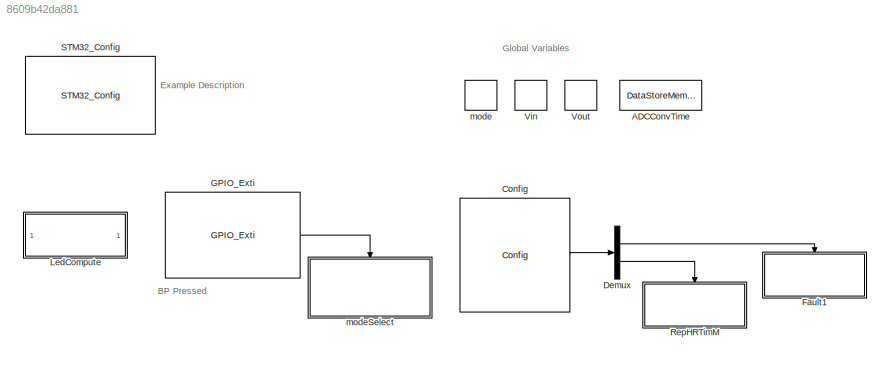
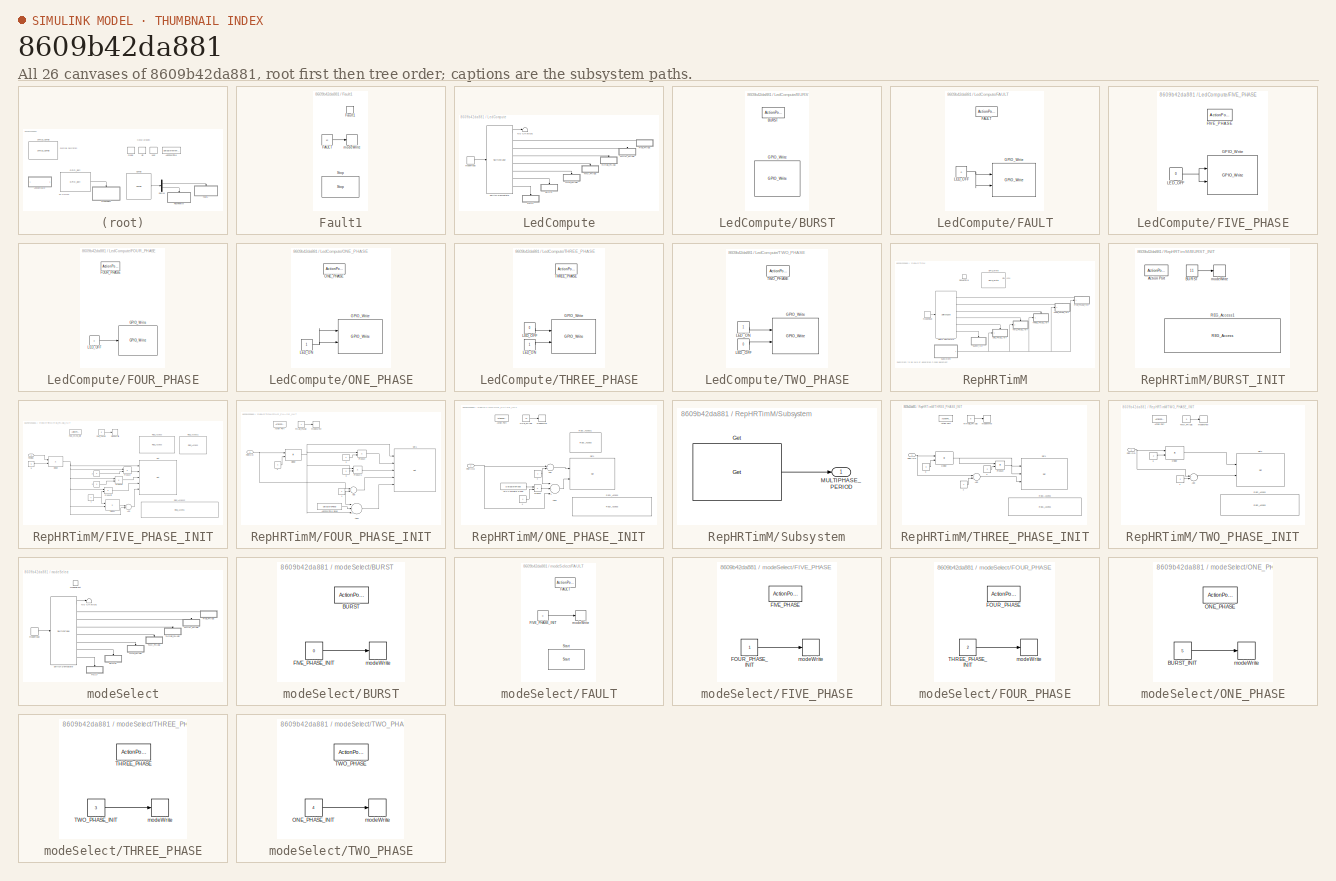
[diagram: thumbnail index - all 26 canvases of the model, root first then tree order]
MODEL slx_8609b42da881
KIND model
CONFIG AbsTol = auto
CONFIG EnableMultiTasking = on
CONFIG FixedStep = 0.05
CONFIG MaxStep = auto
CONFIG MinStep = auto
CONFIG RelTol = 1e-3
CONFIG SampleTimeConstraint = Unconstrained
CONFIG Solver = FixedStepDiscrete
CONFIG SolverName = FixedStepDiscrete
CONFIG StartTime = 0.0
CONFIG StopTime = 10.0
BLOCK [DataStoreMemory] ADCConvTime
  DataStoreName = ADCConvTime
  InitialValue = 1152
  OutDataTypeStr = uint32
  ReadBeforeWriteMsg = warning
  ShowAdditionalParam = off
  WriteAfterReadMsg = warning
  WriteAfterWriteMsg = warning
BLOCK [Reference] Config  REF=HRTIMERS_Lib/Config
  Ports = [0, 1]
  SourceBlock = HRTIMERS_Lib/Config
  SourceProductName = Target Support Package - STM32 Adapter
  SourceType = HRTimer_Config
BLOCK [Demux] Demux
  DisplayOption = bar
  Outputs = 2
  Ports = [1, 2]
BLOCK [SubSystem] Fault1
  Ports = [0, 0, 0, 1]
  RequestExecContextInheritance = off
  TreatAsAtomicUnit = on
BLOCK [Constant] Fault1/FAULT
  OutDataTypeStr = uint8
  Value = 12
BLOCK [TriggerPort] Fault1/Fault1
  Ports = []
  StatesWhenEnabling = held
  TriggerType = function-call
  VariantControl = Variant
BLOCK [Reference] Fault1/Stop  REF=HRTIMERS_Lib/Stop
  Ports = []
  SourceBlock = HRTIMERS_Lib/Stop
  SourceProductName = Target Support Package - STM32 Adapter
  SourceType = HRTimer_Stop
BLOCK [DataStoreWrite] Fault1/modeWrite
  DataStoreName = mode
  Ports = [1]
BLOCK [Reference] GPIO_Exti  REF=GPIO_Lib/GPIO_Exti
  Ports = [0, 1]
  Priority = 0
  SourceBlock = GPIO_Lib/GPIO_Exti
  SourceProductName = Target Support Package - STM32 Adapter
  SourceType = GPIO_Exti
BLOCK [SubSystem] LedCompute
  Ports = []
  RequestExecContextInheritance = off
BLOCK [SubSystem] LedCompute/BURST
  Ports = [0, 0, 0, 0, 0, 0, 0, 1]
  RequestExecContextInheritance = off
  TreatAsAtomicUnit = on
BLOCK [ActionPort] LedCompute/BURST/BURST
  ActionType = case
BLOCK [Reference] LedCompute/BURST/GPIO_Write  REF=GPIO_Lib/GPIO_Write
  Ports = []
  SourceBlock = GPIO_Lib/GPIO_Write
  SourceProductName = Target Support Package - STM32 Adapter
  SourceType = GPIO_Write
BLOCK [SubSystem] LedCompute/FAULT
  Ports = [0, 0, 0, 0, 0, 0, 0, 1]
  RequestExecContextInheritance = off
  TreatAsAtomicUnit = on
BLOCK [ActionPort] LedCompute/FAULT/FAULT
  ActionType = case
BLOCK [Reference] LedCompute/FAULT/GPIO_Write  REF=GPIO_Lib/GPIO_Write
  Ports = [2]
  SourceBlock = GPIO_Lib/GPIO_Write
  SourceProductName = Target Support Package - STM32 Adapter
  SourceType = GPIO_Write
BLOCK [Constant] LedCompute/FAULT/LED_OFF
  Value = 0
BLOCK [SubSystem] LedCompute/FIVE_PHASE
  Ports = [0, 0, 0, 0, 0, 0, 0, 1]
  RequestExecContextInheritance = off
  TreatAsAtomicUnit = on
BLOCK [ActionPort] LedCompute/FIVE_PHASE/FIVE_PHASE
  ActionType = case
BLOCK [Reference] LedCompute/FIVE_PHASE/GPIO_Write  REF=GPIO_Lib/GPIO_Write
  Ports = [2]
  SourceBlock = GPIO_Lib/GPIO_Write
  SourceProductName = Target Support Package - STM32 Adapter
  SourceType = GPIO_Write
BLOCK [Constant] LedCompute/FIVE_PHASE/LED_OFF
  Value = 0
BLOCK [SubSystem] LedCompute/FOUR_PHASE
  Ports = [0, 0, 0, 0, 0, 0, 0, 1]
  RequestExecContextInheritance = off
  TreatAsAtomicUnit = on
BLOCK [ActionPort] LedCompute/FOUR_PHASE/FOUR_PHASE
  ActionType = case
BLOCK [Reference] LedCompute/FOUR_PHASE/GPIO_Write  REF=GPIO_Lib/GPIO_Write
  Ports = [1]
  SourceBlock = GPIO_Lib/GPIO_Write
  SourceProductName = Target Support Package - STM32 Adapter
  SourceType = GPIO_Write
BLOCK [Constant] LedCompute/FOUR_PHASE/LED_OFF
  Value = 0
BLOCK [Terminator] LedCompute/NO CHANGE
BLOCK [SubSystem] LedCompute/ONE_PHASE
  Ports = [0, 0, 0, 0, 0, 0, 0, 1]
  RequestExecContextInheritance = off
  TreatAsAtomicUnit = on
BLOCK [Reference] LedCompute/ONE_PHASE/GPIO_Write  REF=GPIO_Lib/GPIO_Write
  Ports = [2]
  SourceBlock = GPIO_Lib/GPIO_Write
  SourceProductName = Target Support Package - STM32 Adapter
  SourceType = GPIO_Write
BLOCK [Constant] LedCompute/ONE_PHASE/LED_ON
BLOCK [ActionPort] LedCompute/ONE_PHASE/ONE_PHASE
  ActionType = case
BLOCK [SwitchCase] LedCompute/Switch DemoState
  CaseConditions = {[0,5],6,7,8,9,10,11,12}
  Ports = [1, 8]
  ShowDefaultCase = off
BLOCK [SubSystem] LedCompute/THREE_PHASE
  Ports = [0, 0, 0, 0, 0, 0, 0, 1]
  RequestExecContextInheritance = off
  TreatAsAtomicUnit = on
BLOCK [Reference] LedCompute/THREE_PHASE/GPIO_Write  REF=GPIO_Lib/GPIO_Write
  Ports = [2]
  SourceBlock = GPIO_Lib/GPIO_Write
  SourceProductName = Target Support Package - STM32 Adapter
  SourceType = GPIO_Write
BLOCK [Constant] LedCompute/THREE_PHASE/LED_OFF
  Value = 0
BLOCK [Constant] LedCompute/THREE_PHASE/LED_ON
BLOCK [ActionPort] LedCompute/THREE_PHASE/THREE_PHASE
  ActionType = case
BLOCK [SubSystem] LedCompute/TWO_PHASE
  Ports = [0, 0, 0, 0, 0, 0, 0, 1]
  RequestExecContextInheritance = off
  TreatAsAtomicUnit = on
BLOCK [Reference] LedCompute/TWO_PHASE/GPIO_Write  REF=GPIO_Lib/GPIO_Write
  Ports = [2]
  SourceBlock = GPIO_Lib/GPIO_Write
  SourceProductName = Target Support Package - STM32 Adapter
  SourceType = GPIO_Write
BLOCK [Constant] LedCompute/TWO_PHASE/LED_OFF
  Value = 0
BLOCK [Constant] LedCompute/TWO_PHASE/LED_ON
BLOCK [ActionPort] LedCompute/TWO_PHASE/TWO_PHASE
  ActionType = case
BLOCK [DataStoreRead] LedCompute/modeRead
  DataStoreName = mode
  DialogController = Simulink.DDGSource
  Ports = [0, 1]
BLOCK [SubSystem] RepHRTimM
  Ports = [0, 0, 0, 1]
  RequestExecContextInheritance = off
  TreatAsAtomicUnit = on
BLOCK [SubSystem] RepHRTimM/BURST_INIT
  Ports = [0, 0, 0, 0, 0, 0, 0, 1]
  RequestExecContextInheritance = off
  TreatAsAtomicUnit = on
BLOCK [ActionPort] RepHRTimM/BURST_INIT/Action Port
  ActionType = case
BLOCK [Constant] RepHRTimM/BURST_INIT/BURST
  OutDataTypeStr = uint8
  Value = 11
BLOCK [Reference] RepHRTimM/BURST_INIT/REG_Access1  REF=REG_Lib/REG_Access
  Ports = []
  SourceBlock = REG_Lib/REG_Access
  SourceProductName = Target Support Package - STM32 Adapter
  SourceType = REG_Access
BLOCK [DataStoreWrite] RepHRTimM/BURST_INIT/modeWrite
  DataStoreName = mode
  Ports = [1]
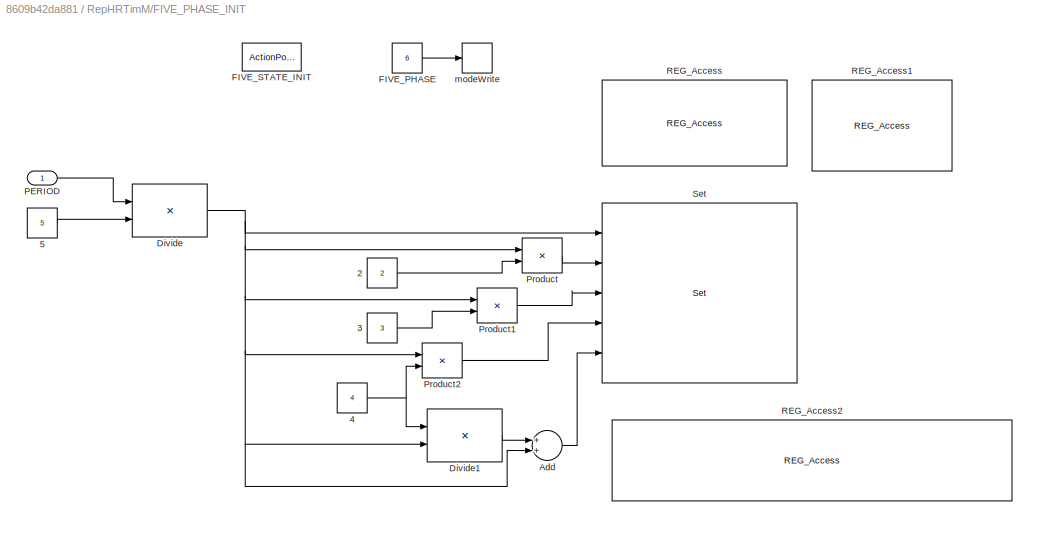
BLOCK [SubSystem] RepHRTimM/FIVE_PHASE_INIT
  Ports = [1, 0, 0, 0, 0, 0, 0, 1]
  RequestExecContextInheritance = off
  TreatAsAtomicUnit = on
BLOCK [Constant] RepHRTimM/FIVE_PHASE_INIT/2
  OutDataTypeStr = uint32
  Value = 2
BLOCK [Constant] RepHRTimM/FIVE_PHASE_INIT/3
  OutDataTypeStr = uint32
  Value = 3
BLOCK [Constant] RepHRTimM/FIVE_PHASE_INIT/4
  OutDataTypeStr = uint32
  Value = 4
BLOCK [Constant] RepHRTimM/FIVE_PHASE_INIT/5
  OutDataTypeStr = uint32
  Value = 5
BLOCK [Sum] RepHRTimM/FIVE_PHASE_INIT/Add
  OutDataTypeStr = uint32
  Ports = [2, 1]
  SaturateOnIntegerOverflow = off
BLOCK [Product] RepHRTimM/FIVE_PHASE_INIT/Divide
  Inputs = */
  OutDataTypeStr = uint32
  Ports = [2, 1]
  RndMeth = Floor
  SaturateOnIntegerOverflow = off
BLOCK [Product] RepHRTimM/FIVE_PHASE_INIT/Divide1
  Inputs = /*
  OutDataTypeStr = uint32
  Ports = [2, 1]
  RndMeth = Floor
  SaturateOnIntegerOverflow = off
BLOCK [Constant] RepHRTimM/FIVE_PHASE_INIT/FIVE_PHASE
  OutDataTypeStr = uint8
  Value = 6
BLOCK [ActionPort] RepHRTimM/FIVE_PHASE_INIT/FIVE_STATE_INIT
  ActionType = case
BLOCK [Inport] RepHRTimM/FIVE_PHASE_INIT/PERIOD
  IconDisplay = Port number
BLOCK [Product] RepHRTimM/FIVE_PHASE_INIT/Product
  OutDataTypeStr = uint32
  Ports = [2, 1]
  RndMeth = Floor
  SaturateOnIntegerOverflow = off
BLOCK [Product] RepHRTimM/FIVE_PHASE_INIT/Product1
  OutDataTypeStr = uint32
  Ports = [2, 1]
  RndMeth = Floor
  SaturateOnIntegerOverflow = off
BLOCK [Product] RepHRTimM/FIVE_PHASE_INIT/Product2
  OutDataTypeStr = uint32
  Ports = [2, 1]
  RndMeth = Floor
  SaturateOnIntegerOverflow = off
BLOCK [Reference] RepHRTimM/FIVE_PHASE_INIT/REG_Access  REF=REG_Lib/REG_Access
  Ports = []
  SourceBlock = REG_Lib/REG_Access
  SourceProductName = Target Support Package - STM32 Adapter
  SourceType = REG_Access
BLOCK [Reference] RepHRTimM/FIVE_PHASE_INIT/REG_Access1  REF=REG_Lib/REG_Access
  Ports = []
  SourceBlock = REG_Lib/REG_Access
  SourceProductName = Target Support Package - STM32 Adapter
  SourceType = REG_Access
BLOCK [Reference] RepHRTimM/FIVE_PHASE_INIT/REG_Access2  REF=REG_Lib/REG_Access
  Ports = []
  SourceBlock = REG_Lib/REG_Access
  SourceProductName = Target Support Package - STM32 Adapter
  SourceType = REG_Access
BLOCK [Reference] RepHRTimM/FIVE_PHASE_INIT/Set  REF=HRTIMERS_Lib/Set
  Ports = [5]
  SourceBlock = HRTIMERS_Lib/Set
  SourceProductName = Target Support Package - STM32 Adapter
  SourceType = HRTimer_Set
BLOCK [DataStoreWrite] RepHRTimM/FIVE_PHASE_INIT/modeWrite
  DataStoreName = mode
  Ports = [1]
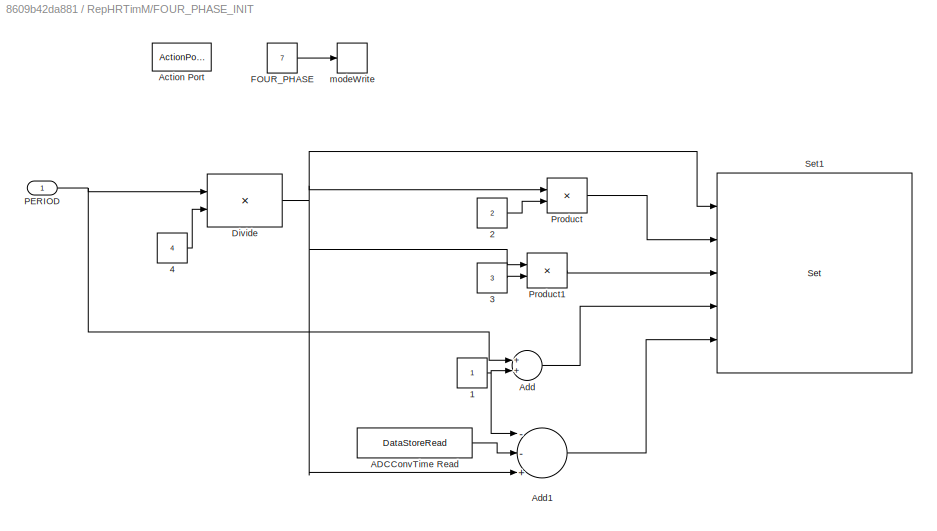
BLOCK [SubSystem] RepHRTimM/FOUR_PHASE_INIT
  Ports = [1, 0, 0, 0, 0, 0, 0, 1]
  RequestExecContextInheritance = off
  TreatAsAtomicUnit = on
BLOCK [Constant] RepHRTimM/FOUR_PHASE_INIT/1
  OutDataTypeStr = uint32
BLOCK [Constant] RepHRTimM/FOUR_PHASE_INIT/2
  OutDataTypeStr = uint32
  Value = 2
BLOCK [Constant] RepHRTimM/FOUR_PHASE_INIT/3
  OutDataTypeStr = uint32
  Value = 3
BLOCK [Constant] RepHRTimM/FOUR_PHASE_INIT/4
  OutDataTypeStr = uint32
  Value = 4
BLOCK [DataStoreRead] RepHRTimM/FOUR_PHASE_INIT/ADCConvTime Read
  DataStoreName = ADCConvTime
  Ports = [0, 1]
BLOCK [ActionPort] RepHRTimM/FOUR_PHASE_INIT/Action Port
  ActionType = case
BLOCK [Sum] RepHRTimM/FOUR_PHASE_INIT/Add
  AccumDataTypeStr = uint32
  OutDataTypeStr = Inherit: Inherit via internal rule
  Ports = [2, 1]
  SaturateOnIntegerOverflow = off
BLOCK [Sum] RepHRTimM/FOUR_PHASE_INIT/Add1
  AccumDataTypeStr = uint32
  Inputs = --+
  OutDataTypeStr = Inherit: Inherit via internal rule
  Ports = [3, 1]
  SaturateOnIntegerOverflow = off
BLOCK [Product] RepHRTimM/FOUR_PHASE_INIT/Divide
  Inputs = */
  OutDataTypeStr = uint32
  Ports = [2, 1]
  RndMeth = Floor
  SaturateOnIntegerOverflow = off
BLOCK [Constant] RepHRTimM/FOUR_PHASE_INIT/FOUR_PHASE
  OutDataTypeStr = uint8
  Value = 7
BLOCK [Inport] RepHRTimM/FOUR_PHASE_INIT/PERIOD
  IconDisplay = Port number
BLOCK [Product] RepHRTimM/FOUR_PHASE_INIT/Product
  OutDataTypeStr = uint32
  Ports = [2, 1]
  RndMeth = Floor
  SaturateOnIntegerOverflow = off
BLOCK [Product] RepHRTimM/FOUR_PHASE_INIT/Product1
  OutDataTypeStr = uint32
  Ports = [2, 1]
  RndMeth = Floor
  SaturateOnIntegerOverflow = off
BLOCK [Reference] RepHRTimM/FOUR_PHASE_INIT/Set1  REF=HRTIMERS_Lib/Set
  Ports = [5]
  SourceBlock = HRTIMERS_Lib/Set
  SourceProductName = Target Support Package - STM32 Adapter
  SourceType = HRTimer_Set
BLOCK [DataStoreWrite] RepHRTimM/FOUR_PHASE_INIT/modeWrite
  DataStoreName = mode
  Ports = [1]
BLOCK [Reference] RepHRTimM/GPIO_Write  REF=GPIO_Lib/GPIO_Write
  Ports = []
  SourceBlock = GPIO_Lib/GPIO_Write
  SourceProductName = Target Support Package - STM32 Adapter
  SourceType = GPIO_Write
BLOCK [SubSystem] RepHRTimM/ONE_PHASE_INIT
  Ports = [1, 0, 0, 0, 0, 0, 0, 1]
  RequestExecContextInheritance = off
  TreatAsAtomicUnit = on
BLOCK [Constant] RepHRTimM/ONE_PHASE_INIT/1
  OutDataTypeStr = uint32
BLOCK [Constant] RepHRTimM/ONE_PHASE_INIT/4
  OutDataTypeStr = uint32
  Value = 4
BLOCK [DataStoreRead] RepHRTimM/ONE_PHASE_INIT/ADCConvTime Read
  DataStoreName = ADCConvTime
  Ports = [0, 1]
BLOCK [ActionPort] RepHRTimM/ONE_PHASE_INIT/Action Port
  ActionType = case
BLOCK [Sum] RepHRTimM/ONE_PHASE_INIT/Add
  OutDataTypeStr = uint32
  Ports = [2, 1]
  SaturateOnIntegerOverflow = off
BLOCK [Sum] RepHRTimM/ONE_PHASE_INIT/Add1
  Inputs = --+
  OutDataTypeStr = uint32
  Ports = [3, 1]
  SaturateOnIntegerOverflow = off
BLOCK [Constant] RepHRTimM/ONE_PHASE_INIT/ONE_PHASE
  OutDataTypeStr = uint8
  Value = 10
BLOCK [Inport] RepHRTimM/ONE_PHASE_INIT/PERIOD
  IconDisplay = Port number
BLOCK [Product] RepHRTimM/ONE_PHASE_INIT/Product
  InputSameDT = off
  OutDataTypeStr = uint32
  Ports = [2, 1]
  RndMeth = Floor
  SaturateOnIntegerOverflow = off
BLOCK [Reference] RepHRTimM/ONE_PHASE_INIT/REG_Access  REF=REG_Lib/REG_Access
  Ports = []
  SourceBlock = REG_Lib/REG_Access
  SourceProductName = Target Support Package - STM32 Adapter
  SourceType = REG_Access
BLOCK [Reference] RepHRTimM/ONE_PHASE_INIT/REG_Access1  REF=REG_Lib/REG_Access
  Ports = []
  SourceBlock = REG_Lib/REG_Access
  SourceProductName = Target Support Package - STM32 Adapter
  SourceType = REG_Access
BLOCK [Reference] RepHRTimM/ONE_PHASE_INIT/Set1  REF=HRTIMERS_Lib/Set
  Ports = [2]
  SourceBlock = HRTIMERS_Lib/Set
  SourceProductName = Target Support Package - STM32 Adapter
  SourceType = HRTimer_Set
BLOCK [DataStoreWrite] RepHRTimM/ONE_PHASE_INIT/modeWrite
  DataStoreName = mode
  Ports = [1]
BLOCK [TriggerPort] RepHRTimM/RepHRTimM
  Ports = []
  StatesWhenEnabling = held
  TriggerType = function-call
  VariantControl = Variant
BLOCK [SubSystem] RepHRTimM/Subsystem
  Ports = [0, 1]
  RTWSystemCode = Inline
  RequestExecContextInheritance = off
  TreatAsAtomicUnit = on
BLOCK [Reference] RepHRTimM/Subsystem/Get  REF=HRTIMERS_Lib/Get
  Ports = [0, 1]
  Priority = -1
  SourceBlock = HRTIMERS_Lib/Get
  SourceProductName = Target Support Package - STM32 Adapter
  SourceType = HRTimer_Get
BLOCK [Outport] RepHRTimM/Subsystem/MULTIPHASE_PERIOD
  IconDisplay = Port number
BLOCK [SwitchCase] RepHRTimM/Switch DemoState
  CaseConditions = {0,1,2,3,4,5}
  Ports = [1, 6]
  Priority = 0
  ShowDefaultCase = off
BLOCK [SubSystem] RepHRTimM/THREE_PHASE_INIT
  Ports = [1, 0, 0, 0, 0, 0, 0, 1]
  RequestExecContextInheritance = off
  TreatAsAtomicUnit = on
BLOCK [Constant] RepHRTimM/THREE_PHASE_INIT/1
  OutDataTypeStr = uint32
BLOCK [Constant] RepHRTimM/THREE_PHASE_INIT/2
  OutDataTypeStr = uint32
  Value = 2
BLOCK [Constant] RepHRTimM/THREE_PHASE_INIT/3
  OutDataTypeStr = uint32
  Value = 3
BLOCK [ActionPort] RepHRTimM/THREE_PHASE_INIT/Action Port
  ActionType = case
BLOCK [Sum] RepHRTimM/THREE_PHASE_INIT/Add
  AccumDataTypeStr = uint32
  OutDataTypeStr = Inherit: Inherit via internal rule
  Ports = [2, 1]
  SaturateOnIntegerOverflow = off
BLOCK [Product] RepHRTimM/THREE_PHASE_INIT/Divide
  Inputs = */
  OutDataTypeStr = uint32
  Ports = [2, 1]
  RndMeth = Floor
  SaturateOnIntegerOverflow = off
BLOCK [Inport] RepHRTimM/THREE_PHASE_INIT/PERIOD
  IconDisplay = Port number
BLOCK [Product] RepHRTimM/THREE_PHASE_INIT/Product
  OutDataTypeStr = uint32
  Ports = [2, 1]
  RndMeth = Floor
  SaturateOnIntegerOverflow = off
BLOCK [Reference] RepHRTimM/THREE_PHASE_INIT/REG_Access  REF=REG_Lib/REG_Access
  Ports = []
  SourceBlock = REG_Lib/REG_Access
  SourceProductName = Target Support Package - STM32 Adapter
  SourceType = REG_Access
BLOCK [Reference] RepHRTimM/THREE_PHASE_INIT/Set1  REF=HRTIMERS_Lib/Set
  Ports = [3]
  SourceBlock = HRTIMERS_Lib/Set
  SourceProductName = Target Support Package - STM32 Adapter
  SourceType = HRTimer_Set
BLOCK [Constant] RepHRTimM/THREE_PHASE_INIT/THREE_PHASE
  OutDataTypeStr = uint8
  Value = 8
BLOCK [DataStoreWrite] RepHRTimM/THREE_PHASE_INIT/modeWrite
  DataStoreName = mode
  Ports = [1]
BLOCK [SubSystem] RepHRTimM/TWO_PHASE_INIT
  Ports = [1, 0, 0, 0, 0, 0, 0, 1]
  RequestExecContextInheritance = off
  TreatAsAtomicUnit = on
BLOCK [Constant] RepHRTimM/TWO_PHASE_INIT/1
  OutDataTypeStr = uint32
BLOCK [Constant] RepHRTimM/TWO_PHASE_INIT/2
  OutDataTypeStr = uint32
  Value = 2
BLOCK [ActionPort] RepHRTimM/TWO_PHASE_INIT/Action Port
  ActionType = case
BLOCK [Sum] RepHRTimM/TWO_PHASE_INIT/Add
  AccumDataTypeStr = uint32
  OutDataTypeStr = Inherit: Inherit via internal rule
  Ports = [2, 1]
  SaturateOnIntegerOverflow = off
BLOCK [Product] RepHRTimM/TWO_PHASE_INIT/Divide
  Inputs = */
  OutDataTypeStr = uint32
  Ports = [2, 1]
  RndMeth = Floor
  SaturateOnIntegerOverflow = off
BLOCK [Inport] RepHRTimM/TWO_PHASE_INIT/PERIOD
  IconDisplay = Port number
BLOCK [Reference] RepHRTimM/TWO_PHASE_INIT/REG_Access  REF=REG_Lib/REG_Access
  Ports = []
  SourceBlock = REG_Lib/REG_Access
  SourceProductName = Target Support Package - STM32 Adapter
  SourceType = REG_Access
BLOCK [Reference] RepHRTimM/TWO_PHASE_INIT/Set1  REF=HRTIMERS_Lib/Set
  Ports = [2]
  SourceBlock = HRTIMERS_Lib/Set
  SourceProductName = Target Support Package - STM32 Adapter
  SourceType = HRTimer_Set
BLOCK [Constant] RepHRTimM/TWO_PHASE_INIT/TWO_PHASE
  OutDataTypeStr = uint8
  Value = 9
BLOCK [DataStoreWrite] RepHRTimM/TWO_PHASE_INIT/modeWrite
  DataStoreName = mode
  Ports = [1]
BLOCK [DataStoreRead] RepHRTimM/modeRead
  DataStoreName = mode
  Ports = [0, 1]
BLOCK [Reference] STM32_Config  REF=STM32_Config_Lib/STM32_Config
  Ports = []
  Priority = 0
  SourceBlock = STM32_Config_Lib/STM32_Config
  SourceProductName = Target Support Package - STM32 Adapter
  SourceType = STM32_Config
BLOCK [DataStoreMemory] Vin
  DataStoreName = Vin
  OutDataTypeStr = uint32
  OutMax = 5000
  OutMin = 0
  ReadBeforeWriteMsg = warning
  ShowAdditionalParam = off
  WriteAfterReadMsg = warning
  WriteAfterWriteMsg = warning
BLOCK [DataStoreMemory] Vout
  DataStoreName = Vout
  OutDataTypeStr = uint32
  OutMin = 0
  ReadBeforeWriteMsg = warning
  ShowAdditionalParam = off
  WriteAfterReadMsg = warning
  WriteAfterWriteMsg = warning
BLOCK [DataStoreMemory] mode
  DataStoreName = mode
  InitialValue = 6
  OutDataTypeStr = uint8
  OutMax = 12
  OutMin = 0
  ReadBeforeWriteMsg = warning
  ShowAdditionalParam = off
  WriteAfterReadMsg = warning
  WriteAfterWriteMsg = warning
BLOCK [SubSystem] modeSelect
  Ports = [0, 0, 0, 1]
  RequestExecContextInheritance = off
  TreatAsAtomicUnit = on
BLOCK [SubSystem] modeSelect/BURST
  Ports = [0, 0, 0, 0, 0, 0, 0, 1]
  RequestExecContextInheritance = off
  TreatAsAtomicUnit = on
BLOCK [ActionPort] modeSelect/BURST/BURST
  ActionType = case
BLOCK [Constant] modeSelect/BURST/FIVE_PHASE_INIT
  OutDataTypeStr = uint8
  Value = 0
BLOCK [DataStoreWrite] modeSelect/BURST/modeWrite
  DataStoreName = mode
  Ports = [1]
BLOCK [SubSystem] modeSelect/FAULT
  Ports = [0, 0, 0, 0, 0, 0, 0, 1]
  RequestExecContextInheritance = off
  TreatAsAtomicUnit = on
BLOCK [ActionPort] modeSelect/FAULT/FAULT
  ActionType = case
BLOCK [Constant] modeSelect/FAULT/FIVE_PHASE_INIT
  OutDataTypeStr = uint8
  Value = 0
BLOCK [Reference] modeSelect/FAULT/Start  REF=HRTIMERS_Lib/Start
  Ports = []
  SourceBlock = HRTIMERS_Lib/Start
  SourceProductName = Target Support Package - STM32 Adapter
  SourceType = HRTimer_Start
BLOCK [DataStoreWrite] modeSelect/FAULT/modeWrite
  DataStoreName = mode
  Ports = [1]
BLOCK [SubSystem] modeSelect/FIVE_PHASE
  Ports = [0, 0, 0, 0, 0, 0, 0, 1]
  RequestExecContextInheritance = off
  TreatAsAtomicUnit = on
BLOCK [ActionPort] modeSelect/FIVE_PHASE/FIVE_PHASE
  ActionType = case
BLOCK [Constant] modeSelect/FIVE_PHASE/FOUR_PHASE_INIT
  OutDataTypeStr = uint8
BLOCK [DataStoreWrite] modeSelect/FIVE_PHASE/modeWrite
  DataStoreName = mode
  Ports = [1]
BLOCK [SubSystem] modeSelect/FOUR_PHASE
  Ports = [0, 0, 0, 0, 0, 0, 0, 1]
  RequestExecContextInheritance = off
  TreatAsAtomicUnit = on
BLOCK [ActionPort] modeSelect/FOUR_PHASE/FOUR_PHASE
  ActionType = case
BLOCK [Constant] modeSelect/FOUR_PHASE/THREE_PHASE_INIT
  OutDataTypeStr = uint8
  Value = 2
BLOCK [DataStoreWrite] modeSelect/FOUR_PHASE/modeWrite
  DataStoreName = mode
  Ports = [1]
BLOCK [Terminator] modeSelect/NO CHANGE
BLOCK [SubSystem] modeSelect/ONE_PHASE
  Ports = [0, 0, 0, 0, 0, 0, 0, 1]
  RequestExecContextInheritance = off
  TreatAsAtomicUnit = on
BLOCK [Constant] modeSelect/ONE_PHASE/BURST_INIT
  OutDataTypeStr = uint8
  Value = 5
BLOCK [ActionPort] modeSelect/ONE_PHASE/ONE_PHASE
  ActionType = case
BLOCK [DataStoreWrite] modeSelect/ONE_PHASE/modeWrite
  DataStoreName = mode
  Ports = [1]
BLOCK [SwitchCase] modeSelect/Switch DemoState
  CaseConditions = {[0,5],6,7,8,9,10,11,12}
  Ports = [1, 8]
  ShowDefaultCase = off
BLOCK [SubSystem] modeSelect/THREE_PHASE
  Ports = [0, 0, 0, 0, 0, 0, 0, 1]
  RequestExecContextInheritance = off
  TreatAsAtomicUnit = on
BLOCK [ActionPort] modeSelect/THREE_PHASE/THREE_PHASE
  ActionType = case
BLOCK [Constant] modeSelect/THREE_PHASE/TWO_PHASE_INIT
  OutDataTypeStr = uint8
  Value = 3
BLOCK [DataStoreWrite] modeSelect/THREE_PHASE/modeWrite
  DataStoreName = mode
  Ports = [1]
BLOCK [SubSystem] modeSelect/TWO_PHASE
  Ports = [0, 0, 0, 0, 0, 0, 0, 1]
  RequestExecContextInheritance = off
  TreatAsAtomicUnit = on
BLOCK [Constant] modeSelect/TWO_PHASE/ONE_PHASE_INIT
  OutDataTypeStr = uint8
  Value = 4
BLOCK [ActionPort] modeSelect/TWO_PHASE/TWO_PHASE
  ActionType = case
BLOCK [DataStoreWrite] modeSelect/TWO_PHASE/modeWrite
  DataStoreName = mode
  Ports = [1]
BLOCK [DataStoreRead] modeSelect/modeRead
  DataStoreName = mode
  DialogController = Simulink.DDGSource
  Ports = [0, 1]
BLOCK [TriggerPort] modeSelect/modeSelect
  Ports = []
  StatesWhenEnabling = held
  TriggerType = function-call
  VariantControl = Variant
ANNOTATION (root): Example Description
ANNOTATION (root): BP Pressed
ANNOTATION (root): Global Variables
ANNOTATION RepHRTimM: Blink LED4
ANNOTATION RepHRTimM: Subsystem to be sure of generated C code placement
LINE Config:1 -> Demux:1
LINE Demux:1 -> Fault1:trigger
LINE Demux:2 -> RepHRTimM:trigger
LINE Fault1/FAULT:1 -> Fault1/modeWrite:1
LINE GPIO_Exti:1 -> modeSelect:trigger
NET LedCompute/FAULT/LED_OFF:1 -> LedCompute/FAULT/GPIO_Write:1, LedCompute/FAULT/GPIO_Write:2
NET LedCompute/FIVE_PHASE/LED_OFF:1 -> LedCompute/FIVE_PHASE/GPIO_Write:1, LedCompute/FIVE_PHASE/GPIO_Write:2
LINE LedCompute/FOUR_PHASE/LED_OFF:1 -> LedCompute/FOUR_PHASE/GPIO_Write:1
NET LedCompute/ONE_PHASE/LED_ON:1 -> LedCompute/ONE_PHASE/GPIO_Write:1, LedCompute/ONE_PHASE/GPIO_Write:2
LINE LedCompute/Switch DemoState:1 -> LedCompute/NO CHANGE:1
LINE LedCompute/Switch DemoState:2 -> LedCompute/FIVE_PHASE:ifaction
LINE LedCompute/Switch DemoState:3 -> LedCompute/FOUR_PHASE:ifaction
LINE LedCompute/Switch DemoState:4 -> LedCompute/THREE_PHASE:ifaction
LINE LedCompute/Switch DemoState:5 -> LedCompute/TWO_PHASE:ifaction
LINE LedCompute/Switch DemoState:6 -> LedCompute/ONE_PHASE:ifaction
LINE LedCompute/Switch DemoState:7 -> LedCompute/BURST:ifaction
LINE LedCompute/Switch DemoState:8 -> LedCompute/FAULT:ifaction
LINE LedCompute/THREE_PHASE/LED_OFF:1 -> LedCompute/THREE_PHASE/GPIO_Write:1
LINE LedCompute/THREE_PHASE/LED_ON:1 -> LedCompute/THREE_PHASE/GPIO_Write:2
LINE LedCompute/TWO_PHASE/LED_OFF:1 -> LedCompute/TWO_PHASE/GPIO_Write:2
LINE LedCompute/TWO_PHASE/LED_ON:1 -> LedCompute/TWO_PHASE/GPIO_Write:1
LINE LedCompute/modeRead:1 -> LedCompute/Switch DemoState:1
LINE RepHRTimM/BURST_INIT/BURST:1 -> RepHRTimM/BURST_INIT/modeWrite:1
LINE RepHRTimM/FIVE_PHASE_INIT/2:1 -> RepHRTimM/FIVE_PHASE_INIT/Product:2
LINE RepHRTimM/FIVE_PHASE_INIT/3:1 -> RepHRTimM/FIVE_PHASE_INIT/Product1:2
NET RepHRTimM/FIVE_PHASE_INIT/4:1 -> RepHRTimM/FIVE_PHASE_INIT/Divide1:1, RepHRTimM/FIVE_PHASE_INIT/Product2:2
LINE RepHRTimM/FIVE_PHASE_INIT/5:1 -> RepHRTimM/FIVE_PHASE_INIT/Divide:2
LINE RepHRTimM/FIVE_PHASE_INIT/Add:1 -> RepHRTimM/FIVE_PHASE_INIT/Set:5
LINE RepHRTimM/FIVE_PHASE_INIT/Divide1:1 -> RepHRTimM/FIVE_PHASE_INIT/Add:1
NET RepHRTimM/FIVE_PHASE_INIT/Divide:1 -> RepHRTimM/FIVE_PHASE_INIT/Add:2, RepHRTimM/FIVE_PHASE_INIT/Divide1:2, RepHRTimM/FIVE_PHASE_INIT/Product1:1, RepHRTimM/FIVE_PHASE_INIT/Product2:1, RepHRTimM/FIVE_PHASE_INIT/Product:1, RepHRTimM/FIVE_PHASE_INIT/Set:1
LINE RepHRTimM/FIVE_PHASE_INIT/FIVE_PHASE:1 -> RepHRTimM/FIVE_PHASE_INIT/modeWrite:1
LINE RepHRTimM/FIVE_PHASE_INIT/PERIOD:1 -> RepHRTimM/FIVE_PHASE_INIT/Divide:1
LINE RepHRTimM/FIVE_PHASE_INIT/Product1:1 -> RepHRTimM/FIVE_PHASE_INIT/Set:3
LINE RepHRTimM/FIVE_PHASE_INIT/Product2:1 -> RepHRTimM/FIVE_PHASE_INIT/Set:4
LINE RepHRTimM/FIVE_PHASE_INIT/Product:1 -> RepHRTimM/FIVE_PHASE_INIT/Set:2
NET RepHRTimM/FOUR_PHASE_INIT/1:1 -> RepHRTimM/FOUR_PHASE_INIT/Add1:1, RepHRTimM/FOUR_PHASE_INIT/Add:2
LINE RepHRTimM/FOUR_PHASE_INIT/2:1 -> RepHRTimM/FOUR_PHASE_INIT/Product:2
LINE RepHRTimM/FOUR_PHASE_INIT/3:1 -> RepHRTimM/FOUR_PHASE_INIT/Product1:2
LINE RepHRTimM/FOUR_PHASE_INIT/4:1 -> RepHRTimM/FOUR_PHASE_INIT/Divide:2
LINE RepHRTimM/FOUR_PHASE_INIT/ADCConvTime Read:1 -> RepHRTimM/FOUR_PHASE_INIT/Add1:2
LINE RepHRTimM/FOUR_PHASE_INIT/Add1:1 -> RepHRTimM/FOUR_PHASE_INIT/Set1:5
LINE RepHRTimM/FOUR_PHASE_INIT/Add:1 -> RepHRTimM/FOUR_PHASE_INIT/Set1:4
NET RepHRTimM/FOUR_PHASE_INIT/Divide:1 -> RepHRTimM/FOUR_PHASE_INIT/Add1:3, RepHRTimM/FOUR_PHASE_INIT/Product1:1, RepHRTimM/FOUR_PHASE_INIT/Product:1, RepHRTimM/FOUR_PHASE_INIT/Set1:1
LINE RepHRTimM/FOUR_PHASE_INIT/FOUR_PHASE:1 -> RepHRTimM/FOUR_PHASE_INIT/modeWrite:1
NET RepHRTimM/FOUR_PHASE_INIT/PERIOD:1 -> RepHRTimM/FOUR_PHASE_INIT/Add:1, RepHRTimM/FOUR_PHASE_INIT/Divide:1
LINE RepHRTimM/FOUR_PHASE_INIT/Product1:1 -> RepHRTimM/FOUR_PHASE_INIT/Set1:3
LINE RepHRTimM/FOUR_PHASE_INIT/Product:1 -> RepHRTimM/FOUR_PHASE_INIT/Set1:2
NET RepHRTimM/ONE_PHASE_INIT/1:1 -> RepHRTimM/ONE_PHASE_INIT/Add1:1, RepHRTimM/ONE_PHASE_INIT/Add:2
LINE RepHRTimM/ONE_PHASE_INIT/4:1 -> RepHRTimM/ONE_PHASE_INIT/Product:2
LINE RepHRTimM/ONE_PHASE_INIT/ADCConvTime Read:1 -> RepHRTimM/ONE_PHASE_INIT/Product:1
LINE RepHRTimM/ONE_PHASE_INIT/Add1:1 -> RepHRTimM/ONE_PHASE_INIT/Set1:2
LINE RepHRTimM/ONE_PHASE_INIT/Add:1 -> RepHRTimM/ONE_PHASE_INIT/Set1:1
LINE RepHRTimM/ONE_PHASE_INIT/ONE_PHASE:1 -> RepHRTimM/ONE_PHASE_INIT/modeWrite:1
NET RepHRTimM/ONE_PHASE_INIT/PERIOD:1 -> RepHRTimM/ONE_PHASE_INIT/Add1:3, RepHRTimM/ONE_PHASE_INIT/Add:1
LINE RepHRTimM/ONE_PHASE_INIT/Product:1 -> RepHRTimM/ONE_PHASE_INIT/Add1:2
LINE RepHRTimM/Subsystem/Get:1 -> RepHRTimM/Subsystem/MULTIPHASE_PERIOD:1
NET RepHRTimM/Subsystem:1 -> RepHRTimM/FIVE_PHASE_INIT:1, RepHRTimM/FOUR_PHASE_INIT:1, RepHRTimM/ONE_PHASE_INIT:1, RepHRTimM/THREE_PHASE_INIT:1, RepHRTimM/TWO_PHASE_INIT:1
LINE RepHRTimM/Switch DemoState:1 -> RepHRTimM/FIVE_PHASE_INIT:ifaction
LINE RepHRTimM/Switch DemoState:2 -> RepHRTimM/FOUR_PHASE_INIT:ifaction
LINE RepHRTimM/Switch DemoState:3 -> RepHRTimM/THREE_PHASE_INIT:ifaction
LINE RepHRTimM/Switch DemoState:4 -> RepHRTimM/TWO_PHASE_INIT:ifaction
LINE RepHRTimM/Switch DemoState:5 -> RepHRTimM/ONE_PHASE_INIT:ifaction
LINE RepHRTimM/Switch DemoState:6 -> RepHRTimM/BURST_INIT:ifaction
LINE RepHRTimM/THREE_PHASE_INIT/1:1 -> RepHRTimM/THREE_PHASE_INIT/Add:2
LINE RepHRTimM/THREE_PHASE_INIT/2:1 -> RepHRTimM/THREE_PHASE_INIT/Product:2
LINE RepHRTimM/THREE_PHASE_INIT/3:1 -> RepHRTimM/THREE_PHASE_INIT/Divide:2
LINE RepHRTimM/THREE_PHASE_INIT/Add:1 -> RepHRTimM/THREE_PHASE_INIT/Set1:3
NET RepHRTimM/THREE_PHASE_INIT/Divide:1 -> RepHRTimM/THREE_PHASE_INIT/Product:1, RepHRTimM/THREE_PHASE_INIT/Set1:1
NET RepHRTimM/THREE_PHASE_INIT/PERIOD:1 -> RepHRTimM/THREE_PHASE_INIT/Add:1, RepHRTimM/THREE_PHASE_INIT/Divide:1
LINE RepHRTimM/THREE_PHASE_INIT/Product:1 -> RepHRTimM/THREE_PHASE_INIT/Set1:2
LINE RepHRTimM/THREE_PHASE_INIT/THREE_PHASE:1 -> RepHRTimM/THREE_PHASE_INIT/modeWrite:1
LINE RepHRTimM/TWO_PHASE_INIT/1:1 -> RepHRTimM/TWO_PHASE_INIT/Add:2
LINE RepHRTimM/TWO_PHASE_INIT/2:1 -> RepHRTimM/TWO_PHASE_INIT/Divide:2
LINE RepHRTimM/TWO_PHASE_INIT/Add:1 -> RepHRTimM/TWO_PHASE_INIT/Set1:2
LINE RepHRTimM/TWO_PHASE_INIT/Divide:1 -> RepHRTimM/TWO_PHASE_INIT/Set1:1
NET RepHRTimM/TWO_PHASE_INIT/PERIOD:1 -> RepHRTimM/TWO_PHASE_INIT/Add:1, RepHRTimM/TWO_PHASE_INIT/Divide:1
LINE RepHRTimM/TWO_PHASE_INIT/TWO_PHASE:1 -> RepHRTimM/TWO_PHASE_INIT/modeWrite:1
LINE RepHRTimM/modeRead:1 -> RepHRTimM/Switch DemoState:1
LINE modeSelect/BURST/FIVE_PHASE_INIT:1 -> modeSelect/BURST/modeWrite:1
LINE modeSelect/FAULT/FIVE_PHASE_INIT:1 -> modeSelect/FAULT/modeWrite:1
LINE modeSelect/FIVE_PHASE/FOUR_PHASE_INIT:1 -> modeSelect/FIVE_PHASE/modeWrite:1
LINE modeSelect/FOUR_PHASE/THREE_PHASE_INIT:1 -> modeSelect/FOUR_PHASE/modeWrite:1
LINE modeSelect/ONE_PHASE/BURST_INIT:1 -> modeSelect/ONE_PHASE/modeWrite:1
LINE modeSelect/Switch DemoState:1 -> modeSelect/NO CHANGE:1
LINE modeSelect/Switch DemoState:2 -> modeSelect/FIVE_PHASE:ifaction
LINE modeSelect/Switch DemoState:3 -> modeSelect/FOUR_PHASE:ifaction
LINE modeSelect/Switch DemoState:4 -> modeSelect/THREE_PHASE:ifaction
LINE modeSelect/Switch DemoState:5 -> modeSelect/TWO_PHASE:ifaction
LINE modeSelect/Switch DemoState:6 -> modeSelect/ONE_PHASE:ifaction
LINE modeSelect/Switch DemoState:7 -> modeSelect/BURST:ifaction
LINE modeSelect/Switch DemoState:8 -> modeSelect/FAULT:ifaction
LINE modeSelect/THREE_PHASE/TWO_PHASE_INIT:1 -> modeSelect/THREE_PHASE/modeWrite:1
LINE modeSelect/TWO_PHASE/ONE_PHASE_INIT:1 -> modeSelect/TWO_PHASE/modeWrite:1
LINE modeSelect/modeRead:1 -> modeSelect/Switch DemoState:1
note: NET lines group one-source signal fan-out (src -> all destinations, sorted); 1:1 wires keep LINE
